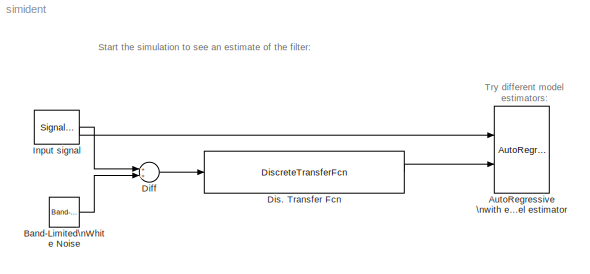
MODEL simident
KIND model
CONFIG AbsTol = 1e-6
CONFIG FixedStep = auto
CONFIG MaxStep = 1e-2
CONFIG MinStep = auto
CONFIG RelTol = 1e-3
CONFIG Solver = VariableStepDiscrete
CONFIG SolverMode = SingleTasking
CONFIG StartTime = 0.0
CONFIG StopTime = 200
BLOCK [Reference] AutoRegressive \nwith eXternal input\nmodel estimator  REF=slident/AutoRegressive \nwith eXternal input\nmodel estimator  (lib defined in mdl_f7d4911ca73a)
  AncestorBlock = slident2/AutoRegressive \nwith eXternal input\nmodel estimator
  HowOften = 25
  Ports = [2]
  SourceBlock = slident/AutoRegressive \nwith eXternal input\nmodel estimator
  SourceType = ARX
  cbsim = Simulation
  npts = 200
  order = [2 2 1]
  tso = 0.05
BLOCK [Reference] Band-Limited\nWhite Noise  REF=simulink/Sources/Band-Limited\nWhite Noise
  Cov = [0.001]
  Ports = [0, 1]
  SourceBlock = simulink/Sources/Band-Limited\nWhite Noise
  SourceType = Continuous White Noise.
  Ts = 2*pi
  VectorParams1D = on
  seed = [23341]
BLOCK [Sum] Diff
  Ports = [2, 1]
BLOCK [DiscreteTransferFcn] Dis. Transfer Fcn
  Denominator = [1 1.11 0.33 0.03]
  Numerator = [1 2 3]
  SampleTime = 0.05
BLOCK [SignalGenerator] Input signal
  Amplitude = 1.000000
  Frequency = 0.875000
  Units = rad/sec
  WaveForm = square
ANNOTATION (root): Start the simulation to see an estimate of the filter:
ANNOTATION (root): Try different model\nestimators:
LINE Band-Limited\nWhite Noise:1 -> Diff:2
LINE Diff:1 -> Dis. Transfer Fcn:1
LINE Dis. Transfer Fcn:1 -> AutoRegressive \nwith eXternal input\nmodel estimator:2
NET Input signal:1 -> AutoRegressive \nwith eXternal input\nmodel estimator:1, Diff:1
note: NET lines group one-source signal fan-out (src -> all destinations, sorted); 1:1 wires keep LINE
